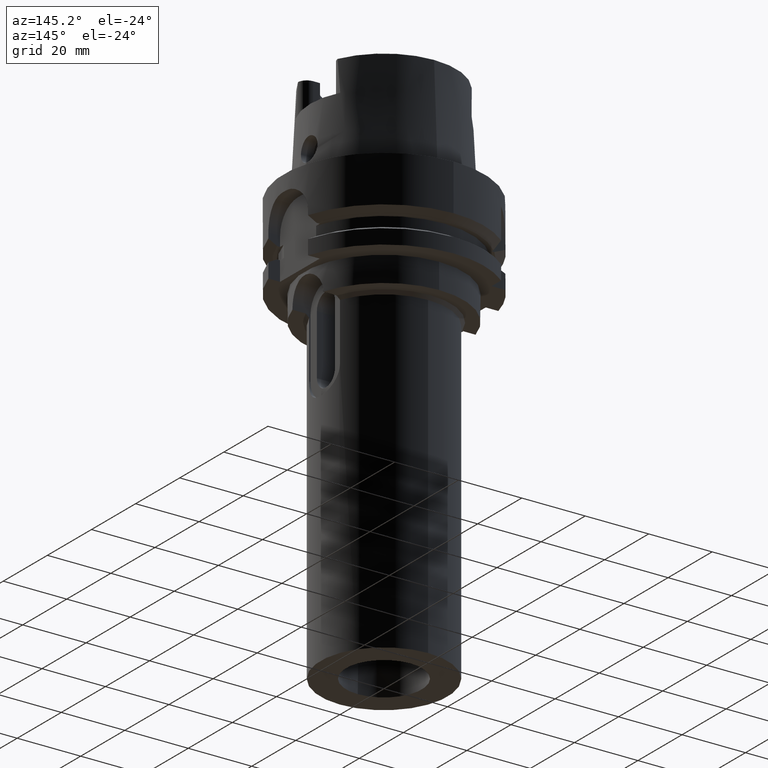
[diagram: clean part render]
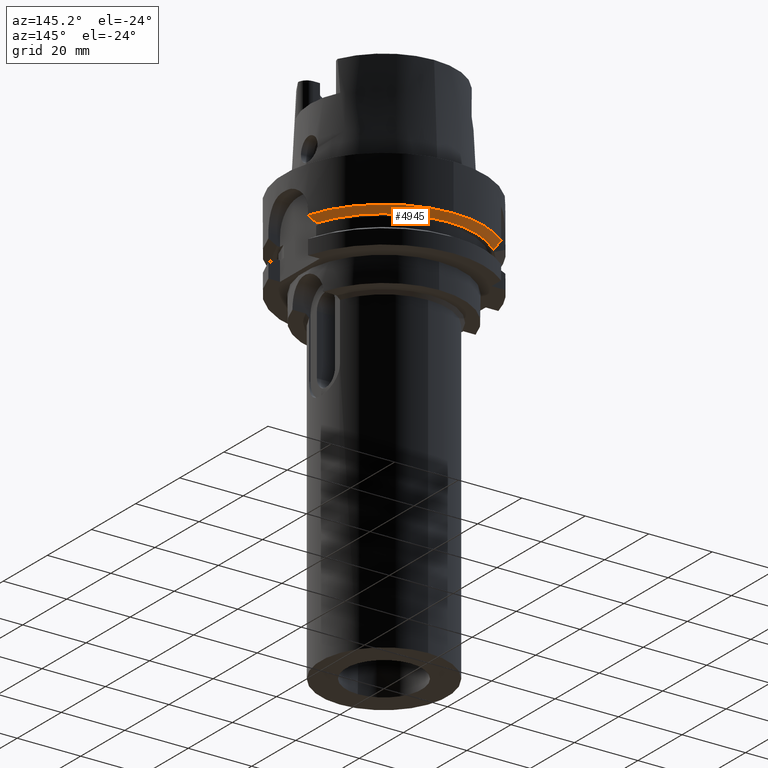
[diagram: same view with one face highlighted and labeled with its STEP entity id]
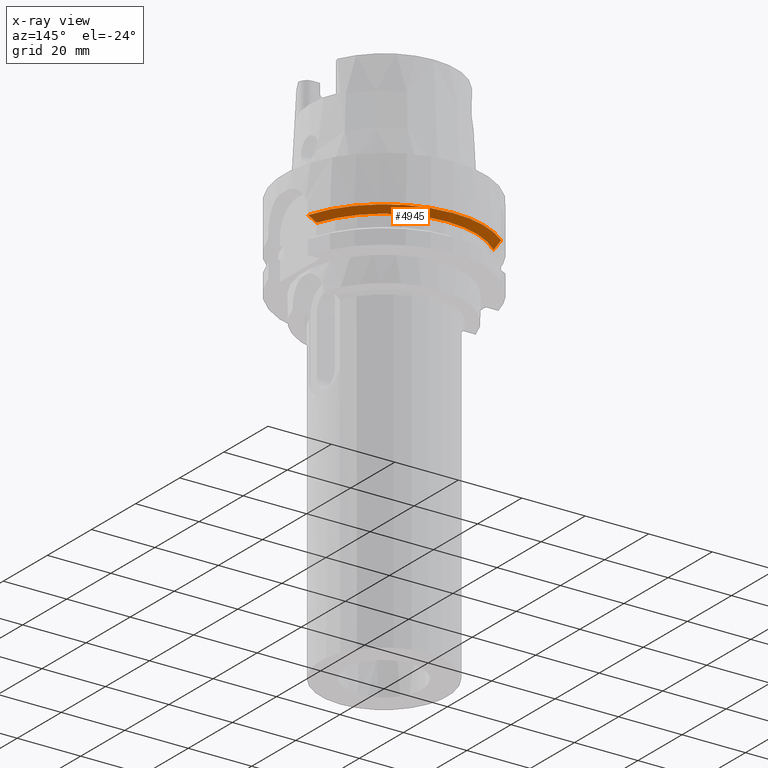
[diagram: x-ray of the same camera — body ghosted, the highlighted face saturated]
A machine part, auxiliary view. The second image highlights one B-rep face of the part: STEP entity #4945.
The next image is the same camera in x-ray: the body ghosted, the highlighted face saturated — about 0% of this face is hidden behind the body in this view.
In plain terms, the highlighted conical surface has half-angle 60 deg.
Its self-contained STEP definition (entity closure, byte-faithful):
#2326=CARTESIAN_POINT('',(0.E0,0.E0,-1.6125E1));
#2327=DIRECTION('',(0.E0,0.E0,1.E0));
#2328=DIRECTION('',(9.502643111725E-1,3.114446000686E-1,0.E0));
#2329=AXIS2_PLACEMENT_3D('',#2326,#2327,#2328);
#2334=CARTESIAN_POINT('',(0.E0,0.E0,-1.6125E1));
#2335=DIRECTION('',(0.E0,0.E0,1.E0));
#2336=DIRECTION('',(0.E0,1.E0,0.E0));
#2337=AXIS2_PLACEMENT_3D('',#2334,#2335,#2336);
#2349=CARTESIAN_POINT('',(-1.999999142366E1,2.085843320116E1,-1.6125E1));
#2350=CARTESIAN_POINT('',(-1.999999142366E1,2.124691956163E1,
-1.596310477794E1));
#2351=CARTESIAN_POINT('',(-2.000000520789E1,2.202238653092E1,
-1.563521353889E1));
#2352=CARTESIAN_POINT('',(-1.999999463689E1,2.318178825561E1,
-1.513454849462E1));
#2353=CARTESIAN_POINT('',(-2.000000904200E1,2.395170717596E1,
-1.479396142234E1));
#2354=CARTESIAN_POINT('',(-2.000000904200E1,2.433617961636E1,
-1.462246851224E1));
#2367=CARTESIAN_POINT('',(2.746035048403E1,9.000000214625E0,-1.6125E1));
#2368=CARTESIAN_POINT('',(2.775612995033E1,9.000000214625E0,-1.596272492850E1));
#2369=CARTESIAN_POINT('',(2.835245678443E1,8.999999992174E0,-1.563505202444E1));
#2370=CARTESIAN_POINT('',(2.926130313658E1,8.999999705452E0,-1.513419971553E1));
#2371=CARTESIAN_POINT('',(2.987677547243E1,9.000000692495E0,-1.479409174623E1));
#2372=CARTESIAN_POINT('',(3.018691748979E1,9.000000692495E0,-1.462249534001E1));
#2377=CARTESIAN_POINT('',(0.E0,0.E0,-1.462250092524E1));
#2378=DIRECTION('',(0.E0,0.E0,1.E0));
#2379=DIRECTION('',(9.583148474999E-1,2.857142857143E-1,0.E0));
#2380=AXIS2_PLACEMENT_3D('',#2377,#2378,#2379);
#2385=CARTESIAN_POINT('',(0.E0,0.E0,-1.462250092524E1));
#2386=DIRECTION('',(0.E0,0.E0,1.E0));
#2387=DIRECTION('',(0.E0,1.E0,0.E0));
#2388=AXIS2_PLACEMENT_3D('',#2385,#2386,#2387);
#3217=CARTESIAN_POINT('',(-1.999999142366E1,2.085843320116E1,-1.6125E1));
#3219=VERTEX_POINT('',#3217);
#3220=VERTEX_POINT('',#2354);
#3324=CARTESIAN_POINT('',(2.746035048403E1,9.000000214625E0,-1.6125E1));
#3325=VERTEX_POINT('',#3324);
#3326=CARTESIAN_POINT('',(-1.755847460203E-14,2.889759526419E1,-1.6125E1));
#3327=VERTEX_POINT('',#3326);
#3330=VERTEX_POINT('',#2372);
#3331=CARTESIAN_POINT('',(0.E0,3.15E1,-1.462250092524E1));
#3332=VERTEX_POINT('',#3331);
#4929=CARTESIAN_POINT('',(0.E0,0.E0,-1.537375046262E1));
#4930=DIRECTION('',(0.E0,0.E0,1.E0));
#4931=DIRECTION('',(0.E0,1.E0,0.E0));
#4932=AXIS2_PLACEMENT_3D('',#4929,#4930,#4931);
#4933=CONICAL_SURFACE('',#4932,3.019879763210E1,6.E1);
#4934=ORIENTED_EDGE('',*,*,#4918,.F.);
#4935=ORIENTED_EDGE('',*,*,#4907,.F.);
#4936=ORIENTED_EDGE('',*,*,#4905,.F.);
#4938=ORIENTED_EDGE('',*,*,#4937,.T.);
#4940=ORIENTED_EDGE('',*,*,#4939,.T.);
#4942=ORIENTED_EDGE('',*,*,#4941,.T.);
#4943=EDGE_LOOP('',(#4934,#4935,#4936,#4938,#4940,#4942));
#4944=FACE_OUTER_BOUND('',#4943,.F.);
#2330=CIRCLE('',#2329,2.889759526419E1);
#2338=CIRCLE('',#2337,2.889759526419E1);
#2355=B_SPLINE_CURVE_WITH_KNOTS('',3,(#2349,#2350,#2351,#2352,#2353,#2354),
.UNSPECIFIED.,.F.,.F.,(4,1,1,4),(0.E0,3.333333333333E-1,6.666666666667E-1,1.E0),
.UNSPECIFIED.);
#2373=B_SPLINE_CURVE_WITH_KNOTS('',3,(#2367,#2368,#2369,#2370,#2371,#2372),
.UNSPECIFIED.,.F.,.F.,(4,1,1,4),(0.E0,3.333333333333E-1,6.666666666667E-1,1.E0),
.UNSPECIFIED.);
#2381=CIRCLE('',#2380,3.15E1);
#2389=CIRCLE('',#2388,3.15E1);
#4905=EDGE_CURVE('',#3325,#3327,#2330,.T.);
#4907=EDGE_CURVE('',#3327,#3219,#2338,.T.);
#4918=EDGE_CURVE('',#3219,#3220,#2355,.T.);
#4937=EDGE_CURVE('',#3325,#3330,#2373,.T.);
#4939=EDGE_CURVE('',#3330,#3332,#2381,.T.);
#4941=EDGE_CURVE('',#3332,#3220,#2389,.T.);
#4945=ADVANCED_FACE('',(#4944),#4933,.T.);